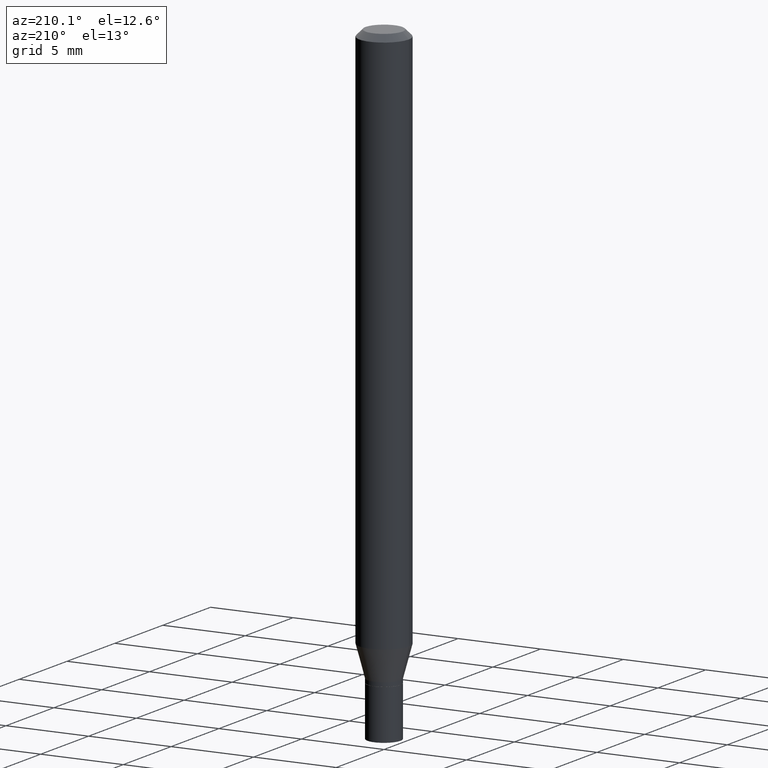
[diagram: clean part render]
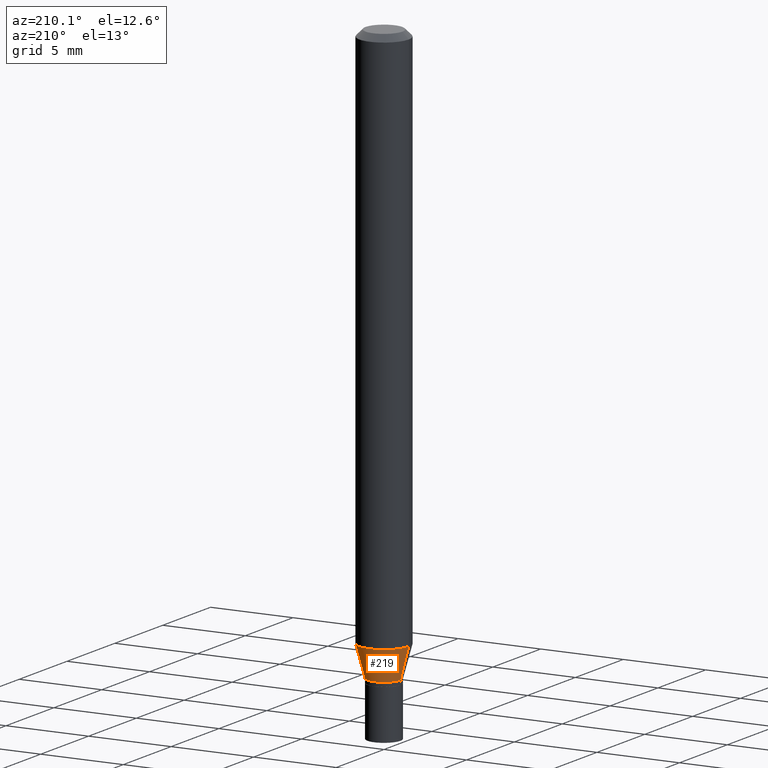
[diagram: same view with one face highlighted and labeled with its STEP entity id]
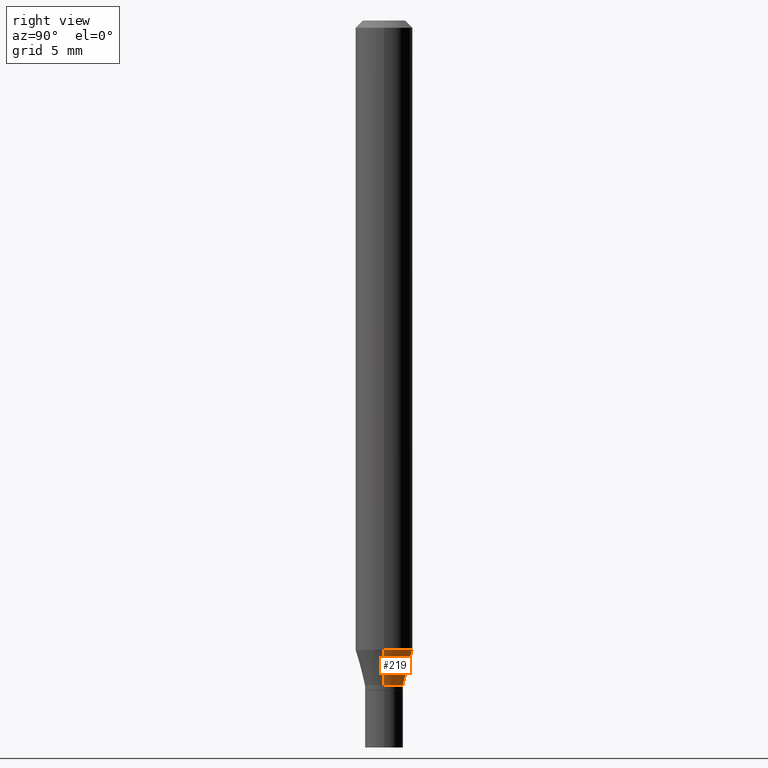
[diagram: same view with one face highlighted and labeled with its STEP entity id]
A machine part, auxiliary view. The second image highlights one B-rep face of the part: STEP entity #219.
A second angle (right view) of the same face is appended — the face is thin or edge-on in the first view.
In plain terms, the highlighted conical surface has half-angle 15 deg.
Its self-contained STEP definition (entity closure, byte-faithful):
#29 = EDGE_CURVE ( 'NONE', #259, #74, #384, .T. ) ;
#35 = CARTESIAN_POINT ( 'NONE',  ( 0.05904999999999999832, -4.945608595596534021E-15, -1.298378599090893371 ) ) ;
#55 = CONICAL_SURFACE ( 'NONE', #312, 0.03934999999999992670, 0.2617993877991502960 ) ;
#74 = VERTEX_POINT ( 'NONE', #292 ) ;
#85 = VERTEX_POINT ( 'NONE', #35 ) ;
#101 = EDGE_CURVE ( 'NONE', #85, #251, #271, .T. ) ;
#102 = CARTESIAN_POINT ( 'NONE',  ( 0.03934999999999992670, -5.064742830125866524E-15, -1.371900000000000119 ) ) ;
#111 = VECTOR ( 'NONE', #465, 39.37007874015748143 ) ;
#114 = DIRECTION ( 'NONE',  ( -2.445468806185136597E-29, 3.491481338843145583E-15, 1.000000000000000000 ) ) ;
#140 = DIRECTION ( 'NONE',  ( -0.2588190451025216832, 5.211531920934551831E-15, 0.9659258262890679791 ) ) ;
#149 = DIRECTION ( 'NONE',  ( -2.445468806185136597E-29, 3.491481338843145583E-15, 1.000000000000000000 ) ) ;
#153 = EDGE_CURVE ( 'NONE', #74, #251, #297, .T. ) ;
#167 = DIRECTION ( 'NONE',  ( -2.445468806185136597E-29, 3.491481338843145583E-15, 1.000000000000000000 ) ) ;
#176 = CARTESIAN_POINT ( 'NONE',  ( 3.354938655205389469E-29, -4.789963248758912396E-15, -1.371900000000000119 ) ) ;
#197 = CARTESIAN_POINT ( 'NONE',  ( 0.03934999999999992670, -5.064742830125866524E-15, -1.371900000000000119 ) ) ;
#208 = ORIENTED_EDGE ( 'NONE', *, *, #303, .F. ) ;
#219 = ADVANCED_FACE ( 'NONE', ( #232 ), #55, .T. ) ;
#223 = ORIENTED_EDGE ( 'NONE', *, *, #153, .T. ) ;
#232 = FACE_OUTER_BOUND ( 'NONE', #353, .T. ) ;
#251 = VERTEX_POINT ( 'NONE', #424 ) ;
#254 = DIRECTION ( 'NONE',  ( 1.000000000000000000, -6.982962677686258033E-15, 0.000000000000000000 ) ) ;
#259 = VERTEX_POINT ( 'NONE', #197 ) ;
#270 = CARTESIAN_POINT ( 'NONE',  ( 3.354938655205389469E-29, -4.789963248758912396E-15, -1.371900000000000119 ) ) ;
#271 = CIRCLE ( 'NONE', #375, 0.05904999999999999832 ) ;
#292 = CARTESIAN_POINT ( 'NONE',  ( -0.03934999999999992670, -4.312026923125067488E-15, -1.371900000000000119 ) ) ;
#297 = LINE ( 'NONE', #457, #411 ) ;
#303 = EDGE_CURVE ( 'NONE', #259, #85, #348, .T. ) ;
#312 = AXIS2_PLACEMENT_3D ( 'NONE', #270, #167, #331 ) ;
#331 = DIRECTION ( 'NONE',  ( 1.000000000000000000, -6.982962677686258033E-15, 0.000000000000000000 ) ) ;
#348 = LINE ( 'NONE', #102, #111 ) ;
#353 = EDGE_LOOP ( 'NONE', ( #369, #223, #357, #208 ) ) ;
#357 = ORIENTED_EDGE ( 'NONE', *, *, #101, .F. ) ;
#366 = AXIS2_PLACEMENT_3D ( 'NONE', #176, #114, #254 ) ;
#369 = ORIENTED_EDGE ( 'NONE', *, *, #29, .T. ) ;
#375 = AXIS2_PLACEMENT_3D ( 'NONE', #391, #149, #450 ) ;
#384 = CIRCLE ( 'NONE', #366, 0.03934999999999992670 ) ;
#391 = CARTESIAN_POINT ( 'NONE',  ( 3.175144362695136916E-29, -4.533264649479159890E-15, -1.298378599090893371 ) ) ;
#411 = VECTOR ( 'NONE', #140, 39.37007874015748143 ) ;
#424 = CARTESIAN_POINT ( 'NONE',  ( -0.05904999999999999832, -4.113689164012821186E-15, -1.298378599090893371 ) ) ;
#450 = DIRECTION ( 'NONE',  ( 1.000000000000000000, -6.982962677686273021E-15, 0.000000000000000000 ) ) ;
#457 = CARTESIAN_POINT ( 'NONE',  ( -0.03934999999999992670, -4.510364682237313790E-15, -1.371900000000000119 ) ) ;
#465 = DIRECTION ( 'NONE',  ( 0.2588190451025216832, 1.565188264969619798E-15, 0.9659258262890679791 ) ) ;